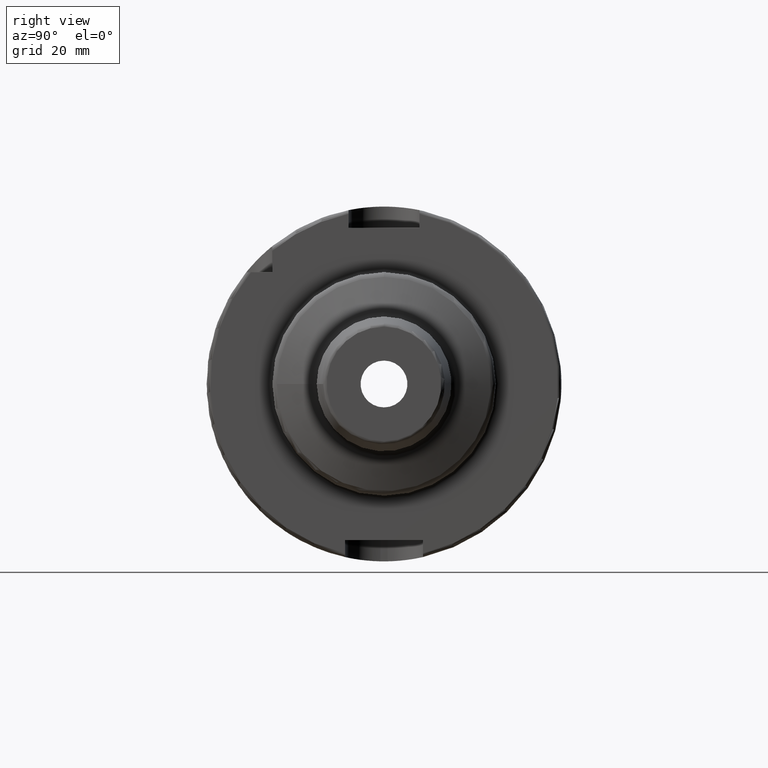
[diagram: clean part render]
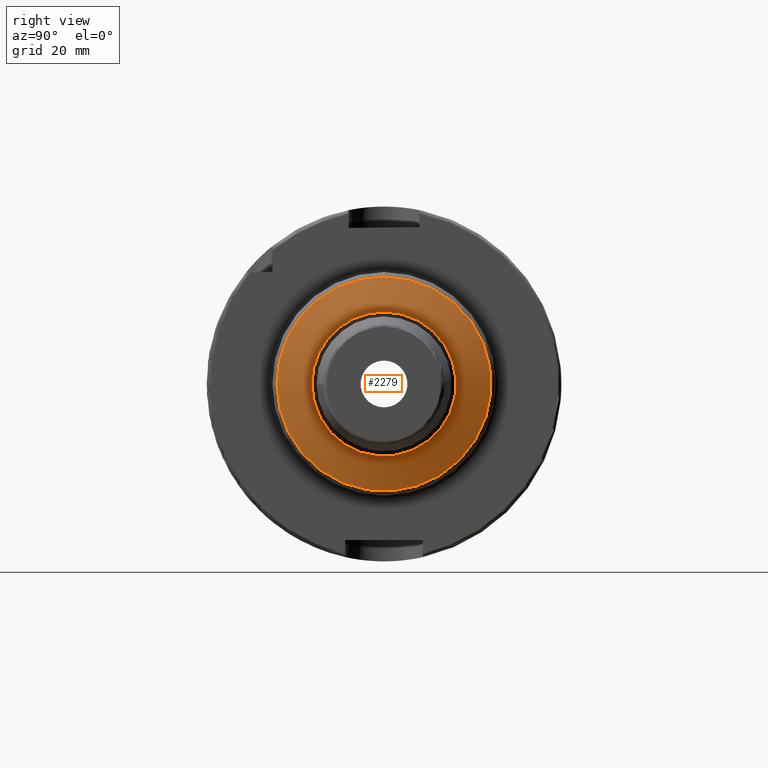
[diagram: same view with one face highlighted and labeled with its STEP entity id]
A machine part, right view. The second image highlights one B-rep face of the part: STEP entity #2279.
In plain terms, the highlighted conical surface has half-angle 70 deg.
Its self-contained STEP definition (entity closure, byte-faithful):
#147=CONICAL_SURFACE('',#2502,25.25,1.22173047639603);
#223=FACE_OUTER_BOUND('',#359,.T.);
#359=EDGE_LOOP('',(#1636,#1637,#1638,#1639,#1640,#1641));
#496=LINE('',#3657,#607);
#607=VECTOR('',#2937,25.25);
#761=CIRCLE('',#2499,20.3159597133487);
#763=CIRCLE('',#2501,20.3159597133487);
#764=CIRCLE('',#2503,30.1840402866513);
#765=CIRCLE('',#2504,30.1840402866513);
#937=VERTEX_POINT('',#3650);
#938=VERTEX_POINT('',#3651);
#939=VERTEX_POINT('',#3656);
#940=VERTEX_POINT('',#3658);
#1199=EDGE_CURVE('',#937,#938,#761,.T.);
#1201=EDGE_CURVE('',#938,#937,#763,.T.);
#1202=EDGE_CURVE('',#937,#939,#496,.T.);
#1203=EDGE_CURVE('',#940,#939,#764,.T.);
#1204=EDGE_CURVE('',#939,#940,#765,.T.);
#1636=ORIENTED_EDGE('',*,*,#1199,.F.);
#1637=ORIENTED_EDGE('',*,*,#1202,.T.);
#1638=ORIENTED_EDGE('',*,*,#1203,.F.);
#1639=ORIENTED_EDGE('',*,*,#1204,.F.);
#1640=ORIENTED_EDGE('',*,*,#1202,.F.);
#1641=ORIENTED_EDGE('',*,*,#1201,.F.);
#2279=ADVANCED_FACE('',(#223),#147,.T.);
#2499=AXIS2_PLACEMENT_3D('',#3652,#2929,#2930);
#2501=AXIS2_PLACEMENT_3D('',#3654,#2933,#2934);
#2502=AXIS2_PLACEMENT_3D('',#3655,#2935,#2936);
#2503=AXIS2_PLACEMENT_3D('',#3659,#2938,#2939);
#2504=AXIS2_PLACEMENT_3D('',#3660,#2940,#2941);
#2929=DIRECTION('center_axis',(1.,0.,0.));
#2930=DIRECTION('ref_axis',(0.,-1.,3.06161699786838E-17));
#2933=DIRECTION('center_axis',(1.,0.,0.));
#2934=DIRECTION('ref_axis',(0.,-1.,3.06161699786838E-17));
#2935=DIRECTION('center_axis',(-1.,0.,0.));
#2936=DIRECTION('ref_axis',(0.,1.,0.));
#2937=DIRECTION('',(-0.342020143325668,-0.939692620785909,-1.15079156022785E-16));
#2938=DIRECTION('center_axis',(-1.,0.,0.));
#2939=DIRECTION('ref_axis',(0.,-1.,3.06161699786838E-17));
#2940=DIRECTION('center_axis',(-1.,0.,0.));
#2941=DIRECTION('ref_axis',(0.,-1.,3.06161699786838E-17));
#3650=CARTESIAN_POINT('',(53.5210298348476,-20.3159597133487,-2.4879875034559E-15));
#3651=CARTESIAN_POINT('',(53.5210298348476,-2.4879875034559E-15,20.3159597133487));
#3652=CARTESIAN_POINT('Origin',(53.5210298348476,0.,-3.10998437931988E-15));
#3654=CARTESIAN_POINT('Origin',(53.5210298348476,0.,-3.10998437931988E-15));
#3655=CARTESIAN_POINT('Origin',(51.7251860358362,0.,0.));
#3656=CARTESIAN_POINT('',(49.9293422368249,-30.1840402866513,-3.69647883223823E-15));
#3657=CARTESIAN_POINT('',(51.7251860358362,-25.25,-3.09223316784707E-15));
#3658=CARTESIAN_POINT('',(49.9293422368249,-3.69647883223823E-15,30.1840402866513));
#3659=CARTESIAN_POINT('Origin',(49.9293422368249,0.,-4.62059854029779E-15));
#3660=CARTESIAN_POINT('Origin',(49.9293422368249,0.,-4.62059854029779E-15));